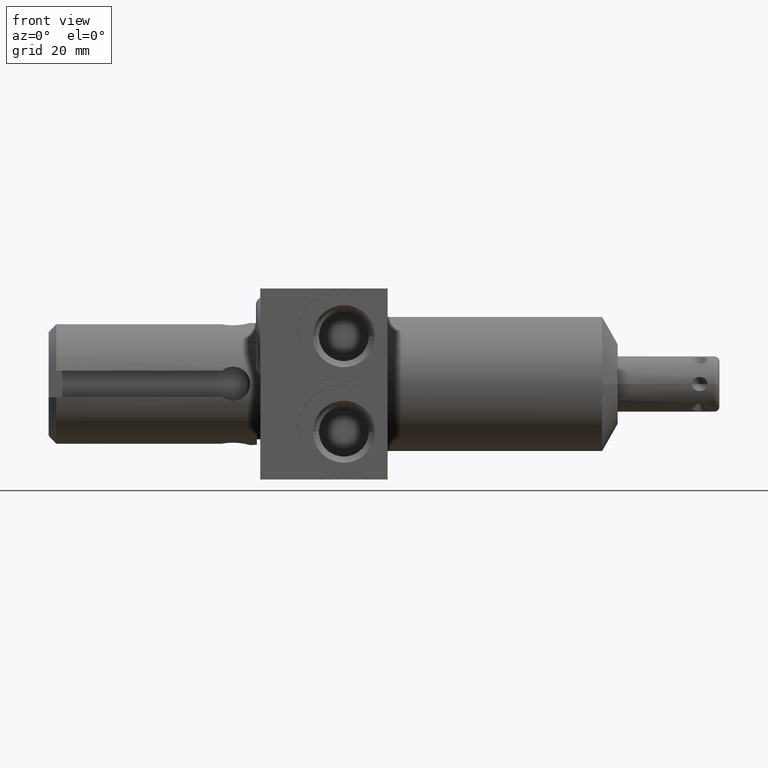
[diagram: clean part render]
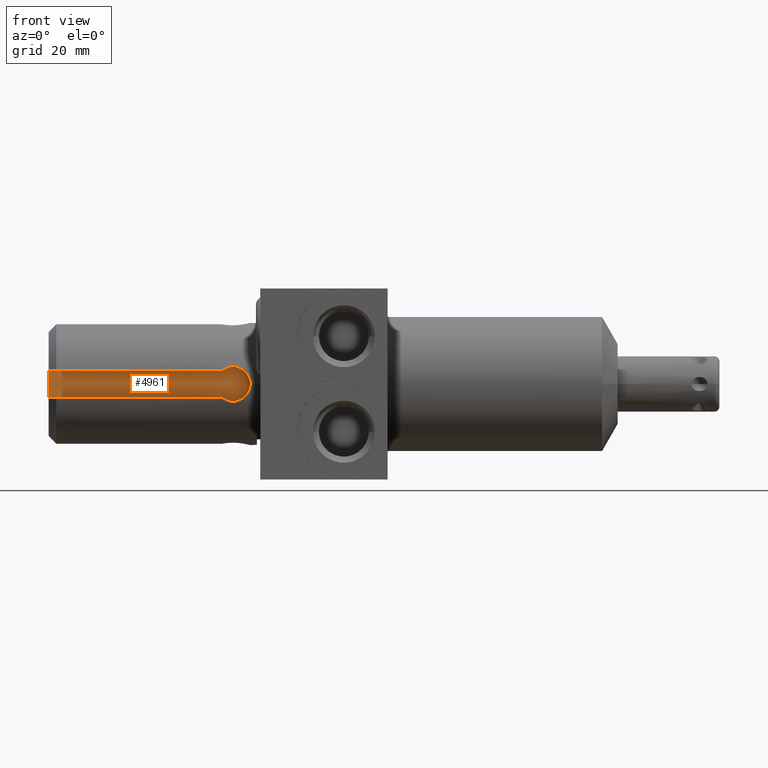
[diagram: same view with one face highlighted and labeled with its STEP entity id]
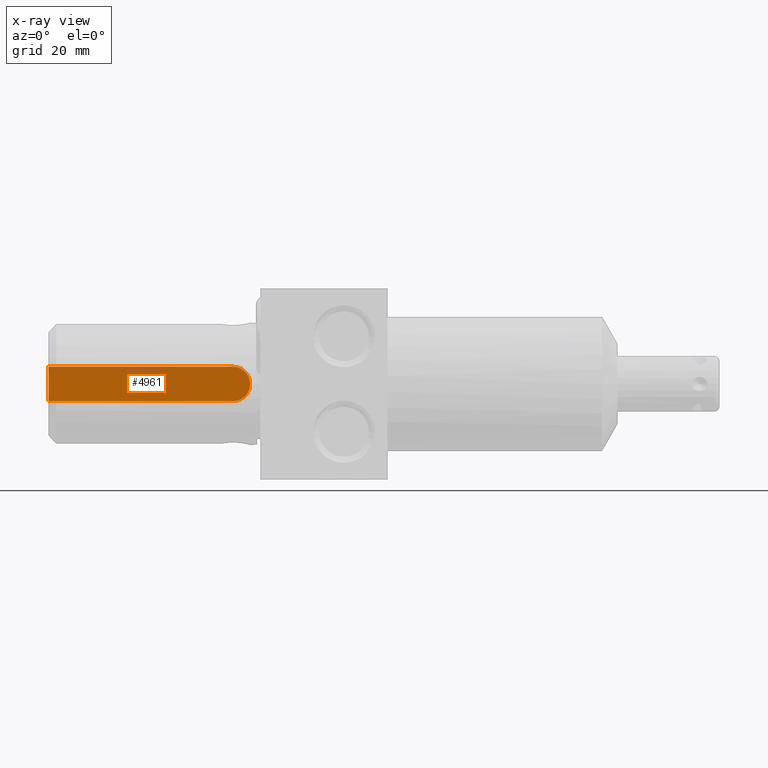
[diagram: x-ray of the same camera — body ghosted, the highlighted face saturated]
A machine part, front view. The second image highlights one B-rep face of the part: STEP entity #4961.
The next image is the same camera in x-ray: the body ghosted, the highlighted face saturated — about 0% of this face is hidden behind the body in this view.
In plain terms, the highlighted planar face has unit normal (0, 1, 0).
Its self-contained STEP definition (entity closure, byte-faithful):
#2186=CARTESIAN_POINT('',(-1.214E0,-2.445E-1,0.E0));
#2187=DIRECTION('',(0.E0,-1.E0,0.E0));
#2188=DIRECTION('',(0.E0,0.E0,-1.E0));
#2189=AXIS2_PLACEMENT_3D('',#2186,#2187,#2188);
#2209=DIRECTION('',(0.E0,0.E0,-1.E0));
#2210=VECTOR('',#2209,2.7E-1);
#2211=CARTESIAN_POINT('',(-2.661E0,-2.445E-1,1.35E-1));
#2212=LINE('',#2211,#2210);
#2405=DIRECTION('',(1.E0,0.E0,0.E0));
#2406=VECTOR('',#2405,1.447E0);
#2407=CARTESIAN_POINT('',(-2.661E0,-2.445E-1,1.35E-1));
#2408=LINE('',#2407,#2406);
#2455=DIRECTION('',(1.E0,0.E0,0.E0));
#2456=VECTOR('',#2455,1.447E0);
#2457=CARTESIAN_POINT('',(-2.661E0,-2.445E-1,-1.35E-1));
#2458=LINE('',#2457,#2456);
#3008=CARTESIAN_POINT('',(-2.661E0,-2.445E-1,1.35E-1));
#3009=CARTESIAN_POINT('',(-2.661E0,-2.445E-1,-1.35E-1));
#3010=VERTEX_POINT('',#3008);
#3011=VERTEX_POINT('',#3009);
#3036=CARTESIAN_POINT('',(-1.214E0,-2.445E-1,1.35E-1));
#3038=VERTEX_POINT('',#3036);
#3040=CARTESIAN_POINT('',(-1.214E0,-2.445E-1,-1.35E-1));
#3042=VERTEX_POINT('',#3040);
#4948=CARTESIAN_POINT('',(-2.661E0,-2.445E-1,1.35E-1));
#4949=DIRECTION('',(0.E0,1.E0,0.E0));
#4950=DIRECTION('',(0.E0,0.E0,-1.E0));
#4951=AXIS2_PLACEMENT_3D('',#4948,#4949,#4950);
#4952=PLANE('',#4951);
#4954=ORIENTED_EDGE('',*,*,#4953,.T.);
#4955=ORIENTED_EDGE('',*,*,#4852,.F.);
#4957=ORIENTED_EDGE('',*,*,#4956,.F.);
#4958=ORIENTED_EDGE('',*,*,#4882,.F.);
#4959=EDGE_LOOP('',(#4954,#4955,#4957,#4958));
#4960=FACE_OUTER_BOUND('',#4959,.F.);
#2190=CIRCLE('',#2189,1.35E-1);
#4852=EDGE_CURVE('',#3042,#3038,#2190,.T.);
#4882=EDGE_CURVE('',#3010,#3011,#2212,.T.);
#4953=EDGE_CURVE('',#3010,#3038,#2408,.T.);
#4956=EDGE_CURVE('',#3011,#3042,#2458,.T.);
#4961=ADVANCED_FACE('',(#4960),#4952,.F.);